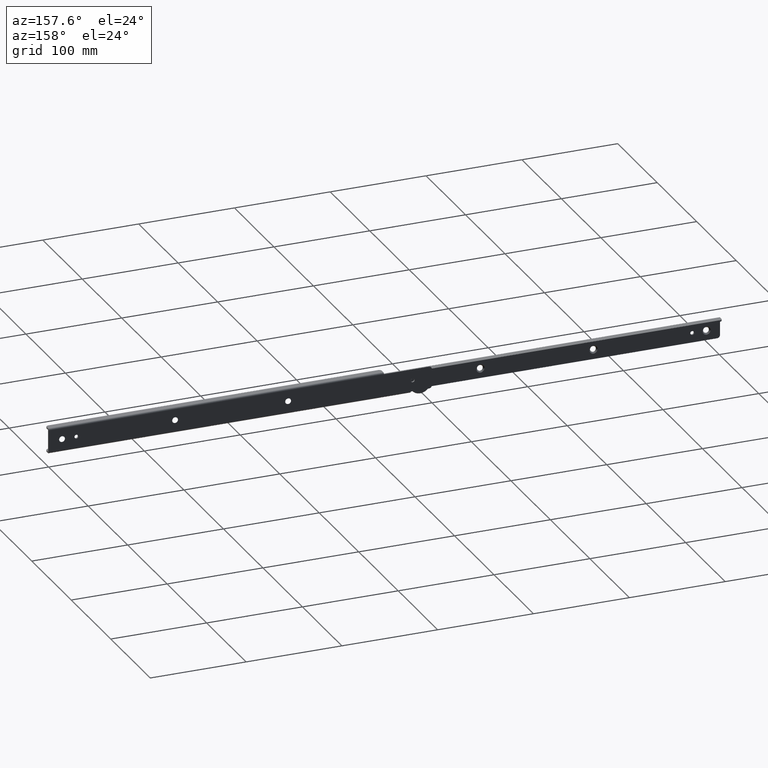
[diagram: clean part render]
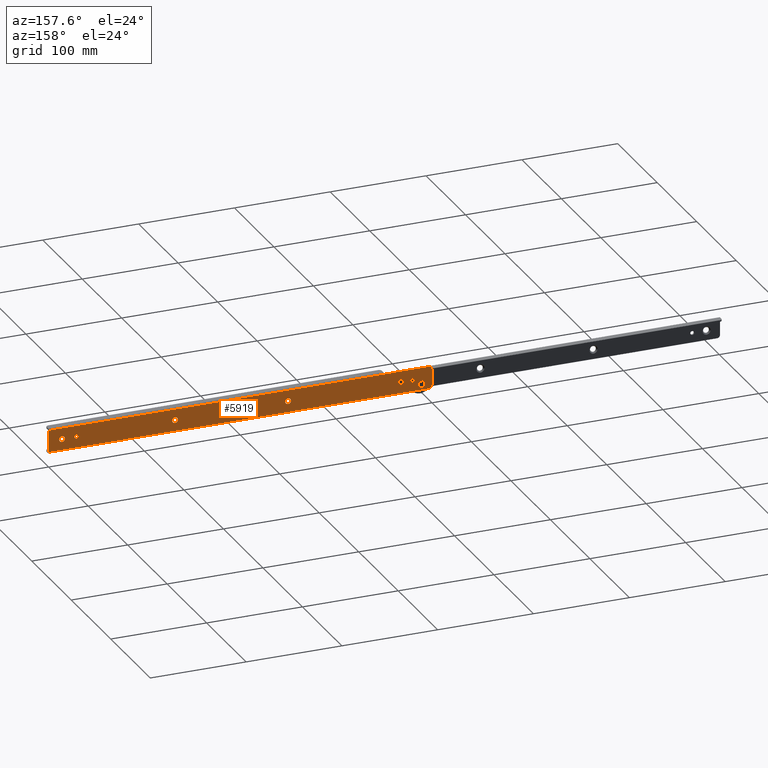
[diagram: same view with one face highlighted and labeled with its STEP entity id]
A machine part, auxiliary view. The second image highlights one B-rep face of the part: STEP entity #5919.
In plain terms, the highlighted face is a freeform B-spline surface patch.
Its self-contained STEP definition (entity closure, byte-faithful):
#3957=CARTESIAN_POINT('',(11.0,0.0,-15.549999999999800));
#3958=VERTEX_POINT('',#3957);
#3959=CARTESIAN_POINT('',(13.940906133188660,1.387779E-017,-12.831454349220831));
#3960=VERTEX_POINT('',#3959);
#3961=CARTESIAN_POINT('',(11.0,0.0,-15.549999999999800));
#3962=CARTESIAN_POINT('',(13.726951919095374,0.0,-15.549999999999793));
#3963=CARTESIAN_POINT('',(13.940906133188653,1.387779E-017,-12.831454349220826));
#3971=(BOUNDED_CURVE()B_SPLINE_CURVE(2,(#3961,#3962,#3963),.UNSPECIFIED.,.F.,.U.)B_SPLINE_CURVE_WITH_KNOTS((3,3),(0.0,0.236331298671449),.UNSPECIFIED.)CURVE()GEOMETRIC_REPRESENTATION_ITEM()RATIONAL_B_SPLINE_CURVE((1.0,0.723120660903024,0.969723352078694))REPRESENTATION_ITEM(''));
#3972=EDGE_CURVE('',#3958,#3960,#3971,.T.);
#3974=CARTESIAN_POINT('',(8.059093866811342,1.387779E-017,-12.368545650778771));
#3975=VERTEX_POINT('',#3974);
#3976=CARTESIAN_POINT('',(8.059093866811342,1.387779E-017,-12.368545650778774));
#3977=CARTESIAN_POINT('',(8.050000000000001,0.0,-12.484094167425209));
#3978=CARTESIAN_POINT('',(8.050000000000001,0.0,-12.599999999999801));
#3979=CARTESIAN_POINT('',(8.050000000000001,0.0,-15.549999999999795));
#3980=CARTESIAN_POINT('',(11.0,0.0,-15.549999999999800));
#3988=(BOUNDED_CURVE()B_SPLINE_CURVE(2,(#3976,#3977,#3978,#3979,#3980),.UNSPECIFIED.,.F.,.U.)B_SPLINE_CURVE_WITH_KNOTS((3,2,3),(0.736331298671449,0.750000000000000,1.0),.UNSPECIFIED.)CURVE()GEOMETRIC_REPRESENTATION_ITEM()RATIONAL_B_SPLINE_CURVE((0.969723352078694,0.983986120283524,1.0,0.707106781186548,1.0))REPRESENTATION_ITEM(''));
#3989=EDGE_CURVE('',#3975,#3958,#3988,.T.);
#4056=CARTESIAN_POINT('',(11.0,0.0,-9.649999999999800));
#4057=VERTEX_POINT('',#4056);
#4058=CARTESIAN_POINT('',(13.940906133188657,1.387779E-017,-12.831454349220829));
#4059=CARTESIAN_POINT('',(13.950000000000006,0.0,-12.715905832574387));
#4060=CARTESIAN_POINT('',(13.949999999999999,0.0,-12.599999999999801));
#4061=CARTESIAN_POINT('',(13.949999999999999,0.0,-9.649999999999800));
#4062=CARTESIAN_POINT('',(11.0,0.0,-9.649999999999800));
#4070=(BOUNDED_CURVE()B_SPLINE_CURVE(2,(#4058,#4059,#4060,#4061,#4062),.UNSPECIFIED.,.F.,.U.)B_SPLINE_CURVE_WITH_KNOTS((3,2,3),(0.236331298671449,0.250000000000000,0.500000000000000),.UNSPECIFIED.)CURVE()GEOMETRIC_REPRESENTATION_ITEM()RATIONAL_B_SPLINE_CURVE((0.969723352078694,0.983986120283524,1.0,0.707106781186548,1.0))REPRESENTATION_ITEM(''));
#4071=EDGE_CURVE('',#3960,#4057,#4070,.T.);
#4105=CARTESIAN_POINT('',(11.0,0.0,-9.649999999999800));
#4106=CARTESIAN_POINT('',(8.273048080904635,0.0,-9.649999999999800));
#4107=CARTESIAN_POINT('',(8.059093866811342,1.387779E-017,-12.368545650778769));
#4115=(BOUNDED_CURVE()B_SPLINE_CURVE(2,(#4105,#4106,#4107),.UNSPECIFIED.,.F.,.U.)B_SPLINE_CURVE_WITH_KNOTS((3,3),(0.500000000000000,0.736331298671448),.UNSPECIFIED.)CURVE()GEOMETRIC_REPRESENTATION_ITEM()RATIONAL_B_SPLINE_CURVE((1.0,0.723120660903024,0.969723352078693))REPRESENTATION_ITEM(''));
#4116=EDGE_CURVE('',#4057,#3975,#4115,.T.);
#4139=CARTESIAN_POINT('',(29.023201358647039,-2.006759E-009,-7.472384020363671));
#4140=VERTEX_POINT('',#4139);
#4141=CARTESIAN_POINT('',(32.0,0.0,-10.099999999999801));
#4142=VERTEX_POINT('',#4141);
#4143=CARTESIAN_POINT('',(29.023201358647039,-2.006759E-009,-7.472384020363671));
#4144=CARTESIAN_POINT('',(29.351904224511767,0.0,-10.099999999999801));
#4145=CARTESIAN_POINT('',(32.0,0.0,-10.099999999999801));
#4153=(BOUNDED_CURVE()B_SPLINE_CURVE(2,(#4143,#4144,#4145),.UNSPECIFIED.,.F.,.U.)B_SPLINE_CURVE_WITH_KNOTS((3,3),(0.271473930548159,0.500000000000000),.UNSPECIFIED.)CURVE()GEOMETRIC_REPRESENTATION_ITEM()RATIONAL_B_SPLINE_CURVE((0.954005427213484,0.732265055741854,1.0))REPRESENTATION_ITEM(''));
#4154=EDGE_CURVE('',#4140,#4142,#4153,.T.);
#4195=CARTESIAN_POINT('',(34.999885771159050,-2.604737E-009,-7.073820376323361));
#4196=VERTEX_POINT('',#4195);
#4202=CARTESIAN_POINT('',(32.0,0.0,-10.099999999999801));
#4203=CARTESIAN_POINT('',(34.999999999999993,0.0,-10.099999999999801));
#4204=CARTESIAN_POINT('',(35.0,0.0,-7.099999999999799));
#4205=CARTESIAN_POINT('',(35.0,0.0,-7.086909930373862));
#4206=CARTESIAN_POINT('',(34.999885771159057,-2.604737E-009,-7.073820376323361));
#4214=(BOUNDED_CURVE()B_SPLINE_CURVE(2,(#4202,#4203,#4204,#4205,#4206),.UNSPECIFIED.,.F.,.U.)B_SPLINE_CURVE_WITH_KNOTS((3,2,3),(0.500000000000000,0.750000000000000,0.751539896350472),.UNSPECIFIED.)CURVE()GEOMETRIC_REPRESENTATION_ITEM()RATIONAL_B_SPLINE_CURVE((1.0,0.707106781186548,1.0,0.998195899205084,0.996414023436008))REPRESENTATION_ITEM(''));
#4215=EDGE_CURVE('',#4142,#4196,#4214,.T.);
#4242=CARTESIAN_POINT('',(32.0,0.0,-4.099999999999799));
#4243=VERTEX_POINT('',#4242);
#4244=CARTESIAN_POINT('',(32.0,0.0,-4.099999999999799));
#4245=CARTESIAN_POINT('',(29.0,0.0,-4.099999999999799));
#4246=CARTESIAN_POINT('',(29.0,0.0,-7.099999999999799));
#4247=CARTESIAN_POINT('',(29.0,0.0,-7.286914796685243));
#4248=CARTESIAN_POINT('',(29.023201358647039,-2.006759E-009,-7.472384020363671));
#4256=(BOUNDED_CURVE()B_SPLINE_CURVE(2,(#4244,#4245,#4246,#4247,#4248),.UNSPECIFIED.,.F.,.U.)B_SPLINE_CURVE_WITH_KNOTS((3,2,3),(0.0,0.250000000000000,0.271473930548158),.UNSPECIFIED.)CURVE()GEOMETRIC_REPRESENTATION_ITEM()RATIONAL_B_SPLINE_CURVE((1.0,0.707106781186548,1.0,0.974841725444693,0.954005427213484))REPRESENTATION_ITEM(''));
#4257=EDGE_CURVE('',#4243,#4140,#4256,.T.);
#4259=CARTESIAN_POINT('',(34.999885771159050,-2.604737E-009,-7.073820376323361));
#4260=CARTESIAN_POINT('',(34.973933597754893,0.0,-4.099999999999800));
#4261=CARTESIAN_POINT('',(32.0,0.0,-4.099999999999799));
#4269=(BOUNDED_CURVE()B_SPLINE_CURVE(2,(#4259,#4260,#4261),.UNSPECIFIED.,.F.,.U.)B_SPLINE_CURVE_WITH_KNOTS((3,3),(0.751539896350471,1.0),.UNSPECIFIED.)CURVE()GEOMETRIC_REPRESENTATION_ITEM()RATIONAL_B_SPLINE_CURVE((0.996414023436010,0.708910881981462,1.0))REPRESENTATION_ITEM(''));
#4270=EDGE_CURVE('',#4196,#4243,#4269,.T.);
#4325=CARTESIAN_POINT('',(147.023201358646990,-2.006759E-009,-7.472384020363871));
#4326=VERTEX_POINT('',#4325);
#4327=CARTESIAN_POINT('',(150.0,0.0,-10.100000000000000));
#4328=VERTEX_POINT('',#4327);
#4329=CARTESIAN_POINT('',(147.023201358647040,-2.006759E-009,-7.472384020363871));
#4330=CARTESIAN_POINT('',(147.351904224511740,0.0,-10.100000000000001));
#4331=CARTESIAN_POINT('',(150.0,0.0,-10.100000000000000));
#4339=(BOUNDED_CURVE()B_SPLINE_CURVE(2,(#4329,#4330,#4331),.UNSPECIFIED.,.F.,.U.)B_SPLINE_CURVE_WITH_KNOTS((3,3),(0.271473930548159,0.500000000000000),.UNSPECIFIED.)CURVE()GEOMETRIC_REPRESENTATION_ITEM()RATIONAL_B_SPLINE_CURVE((0.954005427213484,0.732265055741854,1.0))REPRESENTATION_ITEM(''));
#4340=EDGE_CURVE('',#4326,#4328,#4339,.T.);
#4381=CARTESIAN_POINT('',(152.999885771159090,-2.604733E-009,-7.073820376323565));
#4382=VERTEX_POINT('',#4381);
#4388=CARTESIAN_POINT('',(150.0,0.0,-10.100000000000000));
#4389=CARTESIAN_POINT('',(153.000000000000030,0.0,-10.100000000000001));
#4390=CARTESIAN_POINT('',(153.0,0.0,-7.100000000000001));
#4391=CARTESIAN_POINT('',(153.0,0.0,-7.086909930374063));
#4392=CARTESIAN_POINT('',(152.999885771159060,-2.604733E-009,-7.073820376323566));
#4400=(BOUNDED_CURVE()B_SPLINE_CURVE(2,(#4388,#4389,#4390,#4391,#4392),.UNSPECIFIED.,.F.,.U.)B_SPLINE_CURVE_WITH_KNOTS((3,2,3),(0.500000000000000,0.750000000000000,0.751539896350472),.UNSPECIFIED.)CURVE()GEOMETRIC_REPRESENTATION_ITEM()RATIONAL_B_SPLINE_CURVE((1.0,0.707106781186548,1.0,0.998195899205084,0.996414023436008))REPRESENTATION_ITEM(''));
#4401=EDGE_CURVE('',#4328,#4382,#4400,.T.);
#4428=CARTESIAN_POINT('',(150.0,0.0,-4.100000000000001));
#4429=VERTEX_POINT('',#4428);
#4430=CARTESIAN_POINT('',(150.0,0.0,-4.100000000000001));
#4431=CARTESIAN_POINT('',(147.0,0.0,-4.100000000000000));
#4432=CARTESIAN_POINT('',(147.0,0.0,-7.100000000000001));
#4433=CARTESIAN_POINT('',(146.999999999999970,0.0,-7.286914796685443));
#4434=CARTESIAN_POINT('',(147.023201358647070,-2.006759E-009,-7.472384020363871));
#4442=(BOUNDED_CURVE()B_SPLINE_CURVE(2,(#4430,#4431,#4432,#4433,#4434),.UNSPECIFIED.,.F.,.U.)B_SPLINE_CURVE_WITH_KNOTS((3,2,3),(0.0,0.250000000000000,0.271473930548158),.UNSPECIFIED.)CURVE()GEOMETRIC_REPRESENTATION_ITEM()RATIONAL_B_SPLINE_CURVE((1.0,0.707106781186548,1.0,0.974841725444693,0.954005427213484))REPRESENTATION_ITEM(''));
#4443=EDGE_CURVE('',#4429,#4326,#4442,.T.);
#4445=CARTESIAN_POINT('',(152.999885771159030,-2.604733E-009,-7.073820376323565));
#4446=CARTESIAN_POINT('',(152.973933597754980,0.0,-4.100000000000001));
#4447=CARTESIAN_POINT('',(150.0,0.0,-4.100000000000001));
#4455=(BOUNDED_CURVE()B_SPLINE_CURVE(2,(#4445,#4446,#4447),.UNSPECIFIED.,.F.,.U.)B_SPLINE_CURVE_WITH_KNOTS((3,3),(0.751539896350471,1.0),.UNSPECIFIED.)CURVE()GEOMETRIC_REPRESENTATION_ITEM()RATIONAL_B_SPLINE_CURVE((0.996414023436011,0.708910881981462,1.0))REPRESENTATION_ITEM(''));
#4456=EDGE_CURVE('',#4382,#4429,#4455,.T.);
#4511=CARTESIAN_POINT('',(265.023201358646990,-2.006762E-009,-7.472384020363872));
#4512=VERTEX_POINT('',#4511);
#4513=CARTESIAN_POINT('',(268.0,0.0,-10.100000000000000));
#4514=VERTEX_POINT('',#4513);
#4515=CARTESIAN_POINT('',(265.023201358647040,-2.006762E-009,-7.472384020363872));
#4516=CARTESIAN_POINT('',(265.351904224511710,0.0,-10.100000000000001));
#4517=CARTESIAN_POINT('',(268.0,0.0,-10.100000000000000));
#4525=(BOUNDED_CURVE()B_SPLINE_CURVE(2,(#4515,#4516,#4517),.UNSPECIFIED.,.F.,.U.)B_SPLINE_CURVE_WITH_KNOTS((3,3),(0.271473930548159,0.500000000000000),.UNSPECIFIED.)CURVE()GEOMETRIC_REPRESENTATION_ITEM()RATIONAL_B_SPLINE_CURVE((0.954005427213484,0.732265055741854,1.0))REPRESENTATION_ITEM(''));
#4526=EDGE_CURVE('',#4512,#4514,#4525,.T.);
#4567=CARTESIAN_POINT('',(270.999885771158970,-2.604724E-009,-7.073820376323566));
#4568=VERTEX_POINT('',#4567);
#4574=CARTESIAN_POINT('',(268.0,0.0,-10.100000000000000));
#4575=CARTESIAN_POINT('',(271.0,0.0,-10.100000000000001));
#4576=CARTESIAN_POINT('',(271.0,0.0,-7.100000000000001));
#4577=CARTESIAN_POINT('',(271.0,0.0,-7.086909930374063));
#4578=CARTESIAN_POINT('',(270.999885771159090,-2.604724E-009,-7.073820376323566));
#4586=(BOUNDED_CURVE()B_SPLINE_CURVE(2,(#4574,#4575,#4576,#4577,#4578),.UNSPECIFIED.,.F.,.U.)B_SPLINE_CURVE_WITH_KNOTS((3,2,3),(0.500000000000000,0.750000000000000,0.751539896350472),.UNSPECIFIED.)CURVE()GEOMETRIC_REPRESENTATION_ITEM()RATIONAL_B_SPLINE_CURVE((1.0,0.707106781186548,1.0,0.998195899205084,0.996414023436008))REPRESENTATION_ITEM(''));
#4587=EDGE_CURVE('',#4514,#4568,#4586,.T.);
#4614=CARTESIAN_POINT('',(268.0,0.0,-4.100000000000001));
#4615=VERTEX_POINT('',#4614);
#4616=CARTESIAN_POINT('',(268.0,0.0,-4.100000000000001));
#4617=CARTESIAN_POINT('',(265.0,0.0,-4.100000000000000));
#4618=CARTESIAN_POINT('',(265.0,0.0,-7.100000000000001));
#4619=CARTESIAN_POINT('',(265.0,0.0,-7.286914796685444));
#4620=CARTESIAN_POINT('',(265.023201358647100,-2.006762E-009,-7.472384020363872));
#4628=(BOUNDED_CURVE()B_SPLINE_CURVE(2,(#4616,#4617,#4618,#4619,#4620),.UNSPECIFIED.,.F.,.U.)B_SPLINE_CURVE_WITH_KNOTS((3,2,3),(0.0,0.250000000000000,0.271473930548159),.UNSPECIFIED.)CURVE()GEOMETRIC_REPRESENTATION_ITEM()RATIONAL_B_SPLINE_CURVE((1.0,0.707106781186548,1.0,0.974841725444693,0.954005427213484))REPRESENTATION_ITEM(''));
#4629=EDGE_CURVE('',#4615,#4512,#4628,.T.);
#4631=CARTESIAN_POINT('',(270.999885771159030,-2.604724E-009,-7.073820376323566));
#4632=CARTESIAN_POINT('',(270.973933597754980,0.0,-4.100000000000001));
#4633=CARTESIAN_POINT('',(268.0,0.0,-4.100000000000001));
#4641=(BOUNDED_CURVE()B_SPLINE_CURVE(2,(#4631,#4632,#4633),.UNSPECIFIED.,.F.,.U.)B_SPLINE_CURVE_WITH_KNOTS((3,3),(0.751539896350471,1.0),.UNSPECIFIED.)CURVE()GEOMETRIC_REPRESENTATION_ITEM()RATIONAL_B_SPLINE_CURVE((0.996414023436011,0.708910881981462,1.0))REPRESENTATION_ITEM(''));
#4642=EDGE_CURVE('',#4568,#4615,#4641,.T.);
#4697=CARTESIAN_POINT('',(383.023201358647100,-2.006775E-009,-7.472384020363878));
#4698=VERTEX_POINT('',#4697);
#4699=CARTESIAN_POINT('',(386.0,0.0,-10.100000000000000));
#4700=VERTEX_POINT('',#4699);
#4701=CARTESIAN_POINT('',(383.023201358647100,-2.006775E-009,-7.472384020363878));
#4702=CARTESIAN_POINT('',(383.351904224511940,0.0,-10.100000000000003));
#4703=CARTESIAN_POINT('',(386.0,0.0,-10.100000000000000));
#4711=(BOUNDED_CURVE()B_SPLINE_CURVE(2,(#4701,#4702,#4703),.UNSPECIFIED.,.F.,.U.)B_SPLINE_CURVE_WITH_KNOTS((3,3),(0.271473930548159,0.500000000000000),.UNSPECIFIED.)CURVE()GEOMETRIC_REPRESENTATION_ITEM()RATIONAL_B_SPLINE_CURVE((0.954005427213483,0.732265055741855,1.0))REPRESENTATION_ITEM(''));
#4712=EDGE_CURVE('',#4698,#4700,#4711,.T.);
#4753=CARTESIAN_POINT('',(388.999885771158970,-2.604734E-009,-7.073820376323564));
#4754=VERTEX_POINT('',#4753);
#4760=CARTESIAN_POINT('',(386.0,0.0,-10.100000000000000));
#4761=CARTESIAN_POINT('',(389.000000000000110,0.0,-10.100000000000001));
#4762=CARTESIAN_POINT('',(389.0,0.0,-7.100000000000001));
#4763=CARTESIAN_POINT('',(389.000000000000110,0.0,-7.086909930374063));
#4764=CARTESIAN_POINT('',(388.999885771159030,-2.604734E-009,-7.073820376323564));
#4772=(BOUNDED_CURVE()B_SPLINE_CURVE(2,(#4760,#4761,#4762,#4763,#4764),.UNSPECIFIED.,.F.,.U.)B_SPLINE_CURVE_WITH_KNOTS((3,2,3),(0.500000000000000,0.750000000000000,0.751539896350472),.UNSPECIFIED.)CURVE()GEOMETRIC_REPRESENTATION_ITEM()RATIONAL_B_SPLINE_CURVE((1.0,0.707106781186548,1.0,0.998195899205084,0.996414023436008))REPRESENTATION_ITEM(''));
#4773=EDGE_CURVE('',#4700,#4754,#4772,.T.);
#4800=CARTESIAN_POINT('',(386.0,0.0,-4.100000000000001));
#4801=VERTEX_POINT('',#4800);
#4802=CARTESIAN_POINT('',(386.0,0.0,-4.100000000000001));
#4803=CARTESIAN_POINT('',(382.999999999999940,0.0,-4.100000000000000));
#4804=CARTESIAN_POINT('',(383.0,0.0,-7.100000000000001));
#4805=CARTESIAN_POINT('',(383.0,0.0,-7.286914796685450));
#4806=CARTESIAN_POINT('',(383.023201358647100,-2.006775E-009,-7.472384020363878));
#4814=(BOUNDED_CURVE()B_SPLINE_CURVE(2,(#4802,#4803,#4804,#4805,#4806),.UNSPECIFIED.,.F.,.U.)B_SPLINE_CURVE_WITH_KNOTS((3,2,3),(0.0,0.250000000000000,0.271473930548159),.UNSPECIFIED.)CURVE()GEOMETRIC_REPRESENTATION_ITEM()RATIONAL_B_SPLINE_CURVE((1.0,0.707106781186548,1.0,0.974841725444693,0.954005427213483))REPRESENTATION_ITEM(''));
#4815=EDGE_CURVE('',#4801,#4698,#4814,.T.);
#4817=CARTESIAN_POINT('',(388.999885771159030,-2.604734E-009,-7.073820376323564));
#4818=CARTESIAN_POINT('',(388.973933597754980,0.0,-4.100000000000001));
#4819=CARTESIAN_POINT('',(386.0,0.0,-4.100000000000001));
#4827=(BOUNDED_CURVE()B_SPLINE_CURVE(2,(#4817,#4818,#4819),.UNSPECIFIED.,.F.,.U.)B_SPLINE_CURVE_WITH_KNOTS((3,3),(0.751539896350471,1.0),.UNSPECIFIED.)CURVE()GEOMETRIC_REPRESENTATION_ITEM()RATIONAL_B_SPLINE_CURVE((0.996414023436010,0.708910881981462,1.0))REPRESENTATION_ITEM(''));
#4828=EDGE_CURVE('',#4754,#4801,#4827,.T.);
#4887=CARTESIAN_POINT('',(18.013980948519531,-3.194357E-017,-6.863931520196587));
#4888=VERTEX_POINT('',#4887);
#4889=CARTESIAN_POINT('',(20.0,0.0,-9.099999999999799));
#4890=VERTEX_POINT('',#4889);
#4891=CARTESIAN_POINT('',(18.013980948519531,-3.194357E-017,-6.863931520196587));
#4892=CARTESIAN_POINT('',(18.0,0.0,-6.981551750095388));
#4893=CARTESIAN_POINT('',(18.0,0.0,-7.099999999999799));
#4894=CARTESIAN_POINT('',(18.000000000000007,0.0,-9.099999999999799));
#4895=CARTESIAN_POINT('',(20.0,0.0,-9.099999999999799));
#4903=(BOUNDED_CURVE()B_SPLINE_CURVE(2,(#4891,#4892,#4893,#4894,#4895),.UNSPECIFIED.,.F.,.U.)B_SPLINE_CURVE_WITH_KNOTS((3,2,3),(0.229562471730372,0.250000000000000,0.500000000000000),.UNSPECIFIED.)CURVE()GEOMETRIC_REPRESENTATION_ITEM()RATIONAL_B_SPLINE_CURVE((0.956026750688679,0.976055946242071,1.0,0.707106781186548,1.0))REPRESENTATION_ITEM(''));
#4904=EDGE_CURVE('',#4888,#4890,#4903,.T.);
#4945=CARTESIAN_POINT('',(21.996269596836569,5.551115E-017,-7.222097079186565));
#4946=VERTEX_POINT('',#4945);
#4952=CARTESIAN_POINT('',(20.0,0.0,-9.099999999999799));
#4953=CARTESIAN_POINT('',(21.881412133590349,0.0,-9.099999999999801));
#4954=CARTESIAN_POINT('',(21.996269596836573,5.551115E-017,-7.222097079186565));
#4962=(BOUNDED_CURVE()B_SPLINE_CURVE(2,(#4952,#4953,#4954),.UNSPECIFIED.,.F.,.U.)B_SPLINE_CURVE_WITH_KNOTS((3,3),(0.500000000000000,0.739332962221734),.UNSPECIFIED.)CURVE()GEOMETRIC_REPRESENTATION_ITEM()RATIONAL_B_SPLINE_CURVE((1.0,0.719603993306871,0.976072041629837))REPRESENTATION_ITEM(''));
#4963=EDGE_CURVE('',#4890,#4946,#4962,.T.);
#4986=CARTESIAN_POINT('',(20.0,0.0,-5.099999999999799));
#4987=VERTEX_POINT('',#4986);
#4988=CARTESIAN_POINT('',(20.0,0.0,-5.099999999999799));
#4989=CARTESIAN_POINT('',(18.223650966993894,0.0,-5.099999999999797));
#4990=CARTESIAN_POINT('',(18.013980948519531,-3.194357E-017,-6.863931520196587));
#4998=(BOUNDED_CURVE()B_SPLINE_CURVE(2,(#4988,#4989,#4990),.UNSPECIFIED.,.F.,.U.)B_SPLINE_CURVE_WITH_KNOTS((3,3),(0.0,0.229562471730372),.UNSPECIFIED.)CURVE()GEOMETRIC_REPRESENTATION_ITEM()RATIONAL_B_SPLINE_CURVE((1.0,0.731050834944477,0.956026750688679))REPRESENTATION_ITEM(''));
#4999=EDGE_CURVE('',#4987,#4888,#4998,.T.);
#5001=CARTESIAN_POINT('',(21.996269596836576,5.551115E-017,-7.222097079186564));
#5002=CARTESIAN_POINT('',(22.000000000000004,0.0,-7.161105526714358));
#5003=CARTESIAN_POINT('',(22.0,0.0,-7.099999999999799));
#5004=CARTESIAN_POINT('',(22.000000000000007,0.0,-5.099999999999798));
#5005=CARTESIAN_POINT('',(20.0,0.0,-5.099999999999799));
#5013=(BOUNDED_CURVE()B_SPLINE_CURVE(2,(#5001,#5002,#5003,#5004,#5005),.UNSPECIFIED.,.F.,.U.)B_SPLINE_CURVE_WITH_KNOTS((3,2,3),(0.739332962221734,0.750000000000000,1.0),.UNSPECIFIED.)CURVE()GEOMETRIC_REPRESENTATION_ITEM()RATIONAL_B_SPLINE_CURVE((0.976072041629835,0.987502787879675,1.0,0.707106781186548,1.0))REPRESENTATION_ITEM(''));
#5014=EDGE_CURVE('',#4946,#4987,#5013,.T.);
#5073=CARTESIAN_POINT('',(369.013980948519470,-3.194357E-017,-6.863931520196788));
#5074=VERTEX_POINT('',#5073);
#5075=CARTESIAN_POINT('',(371.0,0.0,-9.100000000000000));
#5076=VERTEX_POINT('',#5075);
#5077=CARTESIAN_POINT('',(369.013980948519530,-3.194357E-017,-6.863931520196788));
#5078=CARTESIAN_POINT('',(369.000000000000060,0.0,-6.981551750095590));
#5079=CARTESIAN_POINT('',(369.0,0.0,-7.100000000000001));
#5080=CARTESIAN_POINT('',(368.999999999999890,0.0,-9.100000000000000));
#5081=CARTESIAN_POINT('',(371.0,0.0,-9.100000000000000));
#5089=(BOUNDED_CURVE()B_SPLINE_CURVE(2,(#5077,#5078,#5079,#5080,#5081),.UNSPECIFIED.,.F.,.U.)B_SPLINE_CURVE_WITH_KNOTS((3,2,3),(0.229562471730372,0.250000000000000,0.500000000000000),.UNSPECIFIED.)CURVE()GEOMETRIC_REPRESENTATION_ITEM()RATIONAL_B_SPLINE_CURVE((0.956026750688679,0.976055946242071,1.0,0.707106781186548,1.0))REPRESENTATION_ITEM(''));
#5090=EDGE_CURVE('',#5074,#5076,#5089,.T.);
#5131=CARTESIAN_POINT('',(372.996269596836610,5.551115E-017,-7.222097079186767));
#5132=VERTEX_POINT('',#5131);
#5138=CARTESIAN_POINT('',(371.0,0.0,-9.100000000000000));
#5139=CARTESIAN_POINT('',(372.881412133590460,0.0,-9.100000000000000));
#5140=CARTESIAN_POINT('',(372.996269596836560,5.551115E-017,-7.222097079186767));
#5148=(BOUNDED_CURVE()B_SPLINE_CURVE(2,(#5138,#5139,#5140),.UNSPECIFIED.,.F.,.U.)B_SPLINE_CURVE_WITH_KNOTS((3,3),(0.500000000000000,0.739332962221734),.UNSPECIFIED.)CURVE()GEOMETRIC_REPRESENTATION_ITEM()RATIONAL_B_SPLINE_CURVE((1.0,0.719603993306871,0.976072041629837))REPRESENTATION_ITEM(''));
#5149=EDGE_CURVE('',#5076,#5132,#5148,.T.);
#5172=CARTESIAN_POINT('',(371.0,0.0,-5.100000000000001));
#5173=VERTEX_POINT('',#5172);
#5174=CARTESIAN_POINT('',(371.0,0.0,-5.100000000000001));
#5175=CARTESIAN_POINT('',(369.223650966993890,0.0,-5.100000000000001));
#5176=CARTESIAN_POINT('',(369.013980948519470,-3.194357E-017,-6.863931520196788));
#5184=(BOUNDED_CURVE()B_SPLINE_CURVE(2,(#5174,#5175,#5176),.UNSPECIFIED.,.F.,.U.)B_SPLINE_CURVE_WITH_KNOTS((3,3),(0.0,0.229562471730372),.UNSPECIFIED.)CURVE()GEOMETRIC_REPRESENTATION_ITEM()RATIONAL_B_SPLINE_CURVE((1.0,0.731050834944477,0.956026750688679))REPRESENTATION_ITEM(''));
#5185=EDGE_CURVE('',#5173,#5074,#5184,.T.);
#5187=CARTESIAN_POINT('',(372.996269596836560,5.551115E-017,-7.222097079186767));
#5188=CARTESIAN_POINT('',(373.000000000000060,0.0,-7.161105526714561));
#5189=CARTESIAN_POINT('',(373.0,0.0,-7.100000000000001));
#5190=CARTESIAN_POINT('',(373.000000000000110,0.0,-5.100000000000001));
#5191=CARTESIAN_POINT('',(371.0,0.0,-5.100000000000001));
#5199=(BOUNDED_CURVE()B_SPLINE_CURVE(2,(#5187,#5188,#5189,#5190,#5191),.UNSPECIFIED.,.F.,.U.)B_SPLINE_CURVE_WITH_KNOTS((3,2,3),(0.739332962221733,0.750000000000000,1.0),.UNSPECIFIED.)CURVE()GEOMETRIC_REPRESENTATION_ITEM()RATIONAL_B_SPLINE_CURVE((0.976072041629835,0.987502787879675,1.0,0.707106781186548,1.0))REPRESENTATION_ITEM(''));
#5200=EDGE_CURVE('',#5132,#5173,#5199,.T.);
#5512=CARTESIAN_POINT('',(3.0,0.0,4.400000000000205));
#5513=VERTEX_POINT('',#5512);
#5519=CARTESIAN_POINT('',(0.0,0.0,1.400000000000202));
#5520=VERTEX_POINT('',#5519);
#5521=CARTESIAN_POINT('',(0.0,0.0,1.400000000000204));
#5522=CARTESIAN_POINT('',(-4.336809E-016,0.0,2.642640687119489));
#5523=CARTESIAN_POINT('',(0.878679656440356,0.0,3.521320343559846));
#5524=CARTESIAN_POINT('',(1.757359312880714,0.0,4.400000000000204));
#5525=CARTESIAN_POINT('',(3.0,0.0,4.400000000000204));
#5533=(BOUNDED_CURVE()B_SPLINE_CURVE(2,(#5521,#5522,#5523,#5524,#5525),.UNSPECIFIED.,.F.,.U.)B_SPLINE_CURVE_WITH_KNOTS((3,2,3),(0.0,0.500000000000000,1.0),.UNSPECIFIED.)CURVE()GEOMETRIC_REPRESENTATION_ITEM()RATIONAL_B_SPLINE_CURVE((1.0,0.923879532511287,1.0,0.923879532511287,1.0))REPRESENTATION_ITEM(''));
#5534=EDGE_CURVE('',#5520,#5513,#5533,.T.);
#5558=CARTESIAN_POINT('',(3.0,0.0,-18.600000000000001));
#5559=VERTEX_POINT('',#5558);
#5560=CARTESIAN_POINT('',(0.0,0.0,-15.600000000000000));
#5561=VERTEX_POINT('',#5560);
#5562=CARTESIAN_POINT('',(3.0,0.0,-18.600000000000001));
#5563=CARTESIAN_POINT('',(0.0,0.0,-18.599999999999991));
#5564=CARTESIAN_POINT('',(0.0,0.0,-15.600000000000000));
#5572=(BOUNDED_CURVE()B_SPLINE_CURVE(2,(#5562,#5563,#5564),.UNSPECIFIED.,.F.,.U.)CURVE()GEOMETRIC_REPRESENTATION_ITEM()QUASI_UNIFORM_CURVE()RATIONAL_B_SPLINE_CURVE((1.0,0.707106781186548,1.0))REPRESENTATION_ITEM(''));
#5573=EDGE_CURVE('',#5559,#5561,#5572,.T.);
#5610=CARTESIAN_POINT('',(50.0,0.0,4.400000000000205));
#5611=VERTEX_POINT('',#5610);
#5612=CARTESIAN_POINT('',(3.0,0.0,4.400000000000205));
#5613=CARTESIAN_POINT('',(50.0,0.0,4.400000000000205));
#5614=QUASI_UNIFORM_CURVE('',1,(#5612,#5613),.UNSPECIFIED.,.F.,.U.);
#5615=EDGE_CURVE('',#5513,#5611,#5614,.T.);
#5681=CARTESIAN_POINT('',(22.0,0.0,-18.600000000000001));
#5682=VERTEX_POINT('',#5681);
#5683=CARTESIAN_POINT('',(22.0,0.0,-18.600000000000001));
#5684=CARTESIAN_POINT('',(3.0,0.0,-18.600000000000001));
#5685=QUASI_UNIFORM_CURVE('',1,(#5683,#5684),.UNSPECIFIED.,.F.,.U.);
#5686=EDGE_CURVE('',#5682,#5559,#5685,.T.);
#5736=CARTESIAN_POINT('',(0.0,0.0,-15.600000000000000));
#5737=CARTESIAN_POINT('',(0.0,0.0,1.400000000000202));
#5738=QUASI_UNIFORM_CURVE('',1,(#5736,#5737),.UNSPECIFIED.,.F.,.U.);
#5739=EDGE_CURVE('',#5561,#5520,#5738,.T.);
#5791=CARTESIAN_POINT('',(400.0,9.103829E-014,-18.600000000000001));
#5792=VERTEX_POINT('',#5791);
#5806=CARTESIAN_POINT('',(400.0,0.0,4.400000000000205));
#5807=VERTEX_POINT('',#5806);
#5808=CARTESIAN_POINT('',(400.0,9.103829E-014,-18.600000000000001));
#5809=CARTESIAN_POINT('',(400.0,0.0,4.400000000000205));
#5810=QUASI_UNIFORM_CURVE('',1,(#5808,#5809),.UNSPECIFIED.,.F.,.U.);
#5811=EDGE_CURVE('',#5792,#5807,#5810,.T.);
#5843=CARTESIAN_POINT('',(400.0,0.0,4.400000000000205));
#5844=CARTESIAN_POINT('',(50.0,0.0,4.400000000000205));
#5845=QUASI_UNIFORM_CURVE('',1,(#5843,#5844),.UNSPECIFIED.,.F.,.U.);
#5846=EDGE_CURVE('',#5807,#5611,#5845,.T.);
#5858=CARTESIAN_POINT('',(-19.979999224722391,0.0,5.548850171329296));
#5859=CARTESIAN_POINT('',(-19.979999224722391,0.0,-19.748850582601140));
#5860=CARTESIAN_POINT('',(419.980009953558520,0.0,5.548850171329296));
#5861=CARTESIAN_POINT('',(419.980009953558520,0.0,-19.748850582601140));
#5862=B_SPLINE_SURFACE_WITH_KNOTS('',1,1,((#5858,#5860),(#5859,#5861)),.UNSPECIFIED.,.F.,.F.,.U.,(2,2),(2,2),(0.0,25.297700753930439),(0.0,439.960009178280930),.UNSPECIFIED.);
#5863=ORIENTED_EDGE('',*,*,#5686,.T.);
#5864=ORIENTED_EDGE('',*,*,#5573,.T.);
#5865=ORIENTED_EDGE('',*,*,#5739,.T.);
#5866=ORIENTED_EDGE('',*,*,#5534,.T.);
#5867=ORIENTED_EDGE('',*,*,#5615,.T.);
#5868=ORIENTED_EDGE('',*,*,#5846,.F.);
#5869=ORIENTED_EDGE('',*,*,#5811,.F.);
#5870=CARTESIAN_POINT('',(400.0,9.103829E-014,-18.600000000000001));
#5871=CARTESIAN_POINT('',(22.0,0.0,-18.600000000000001));
#5872=QUASI_UNIFORM_CURVE('',1,(#5870,#5871),.UNSPECIFIED.,.F.,.U.);
#5873=EDGE_CURVE('',#5792,#5682,#5872,.T.);
#5874=ORIENTED_EDGE('',*,*,#5873,.T.);
#5875=EDGE_LOOP('',(#5863,#5864,#5865,#5866,#5867,#5868,#5869,#5874));
#5876=FACE_OUTER_BOUND('',#5875,.T.);
#5877=ORIENTED_EDGE('',*,*,#5149,.T.);
#5878=ORIENTED_EDGE('',*,*,#5200,.T.);
#5879=ORIENTED_EDGE('',*,*,#5185,.T.);
#5880=ORIENTED_EDGE('',*,*,#5090,.T.);
#5881=EDGE_LOOP('',(#5877,#5878,#5879,#5880));
#5882=FACE_BOUND('',#5881,.T.);
#5883=ORIENTED_EDGE('',*,*,#4963,.T.);
#5884=ORIENTED_EDGE('',*,*,#5014,.T.);
#5885=ORIENTED_EDGE('',*,*,#4999,.T.);
#5886=ORIENTED_EDGE('',*,*,#4904,.T.);
#5887=EDGE_LOOP('',(#5883,#5884,#5885,#5886));
#5888=FACE_BOUND('',#5887,.T.);
#5889=ORIENTED_EDGE('',*,*,#4773,.T.);
#5890=ORIENTED_EDGE('',*,*,#4828,.T.);
#5891=ORIENTED_EDGE('',*,*,#4815,.T.);
#5892=ORIENTED_EDGE('',*,*,#4712,.T.);
#5893=EDGE_LOOP('',(#5889,#5890,#5891,#5892));
#5894=FACE_BOUND('',#5893,.T.);
#5895=ORIENTED_EDGE('',*,*,#4587,.T.);
#5896=ORIENTED_EDGE('',*,*,#4642,.T.);
#5897=ORIENTED_EDGE('',*,*,#4629,.T.);
#5898=ORIENTED_EDGE('',*,*,#4526,.T.);
#5899=EDGE_LOOP('',(#5895,#5896,#5897,#5898));
#5900=FACE_BOUND('',#5899,.T.);
#5901=ORIENTED_EDGE('',*,*,#4401,.T.);
#5902=ORIENTED_EDGE('',*,*,#4456,.T.);
#5903=ORIENTED_EDGE('',*,*,#4443,.T.);
#5904=ORIENTED_EDGE('',*,*,#4340,.T.);
#5905=EDGE_LOOP('',(#5901,#5902,#5903,#5904));
#5906=FACE_BOUND('',#5905,.T.);
#5907=ORIENTED_EDGE('',*,*,#4215,.T.);
#5908=ORIENTED_EDGE('',*,*,#4270,.T.);
#5909=ORIENTED_EDGE('',*,*,#4257,.T.);
#5910=ORIENTED_EDGE('',*,*,#4154,.T.);
#5911=EDGE_LOOP('',(#5907,#5908,#5909,#5910));
#5912=FACE_BOUND('',#5911,.T.);
#5913=ORIENTED_EDGE('',*,*,#4116,.T.);
#5914=ORIENTED_EDGE('',*,*,#3989,.T.);
#5915=ORIENTED_EDGE('',*,*,#3972,.T.);
#5916=ORIENTED_EDGE('',*,*,#4071,.T.);
#5917=EDGE_LOOP('',(#5913,#5914,#5915,#5916));
#5918=FACE_BOUND('',#5917,.T.);
#5919=ADVANCED_FACE('',(#5876,#5882,#5888,#5894,#5900,#5906,#5912,#5918),#5862,.F.);